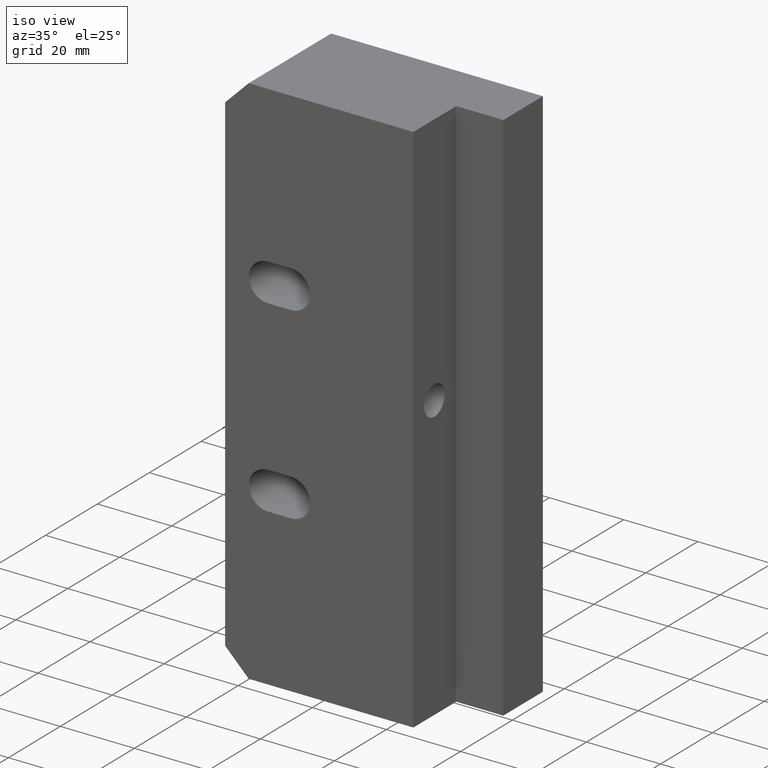
[diagram: clean part render]
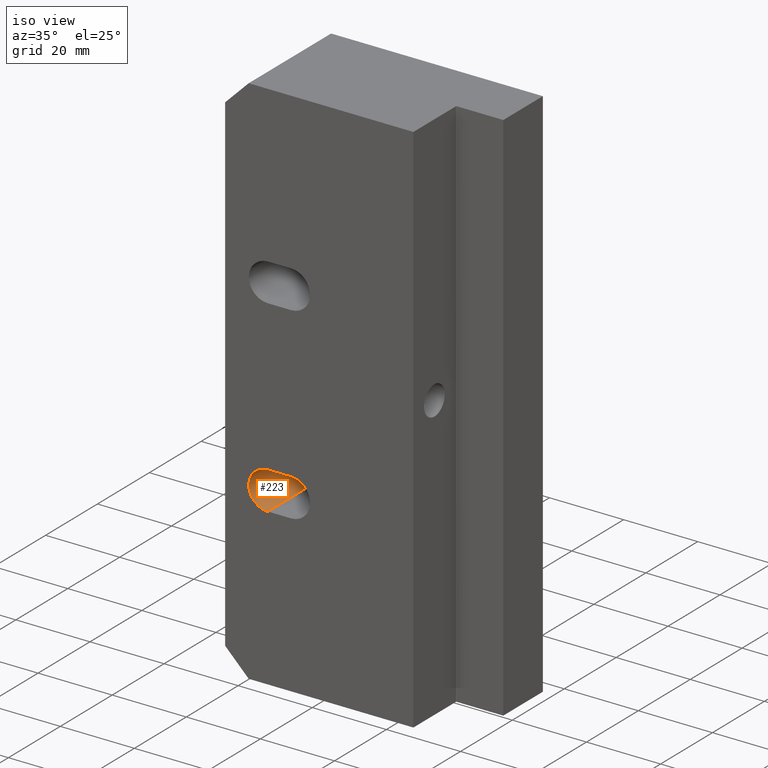
[diagram: same view with one face highlighted and labeled with its STEP entity id]
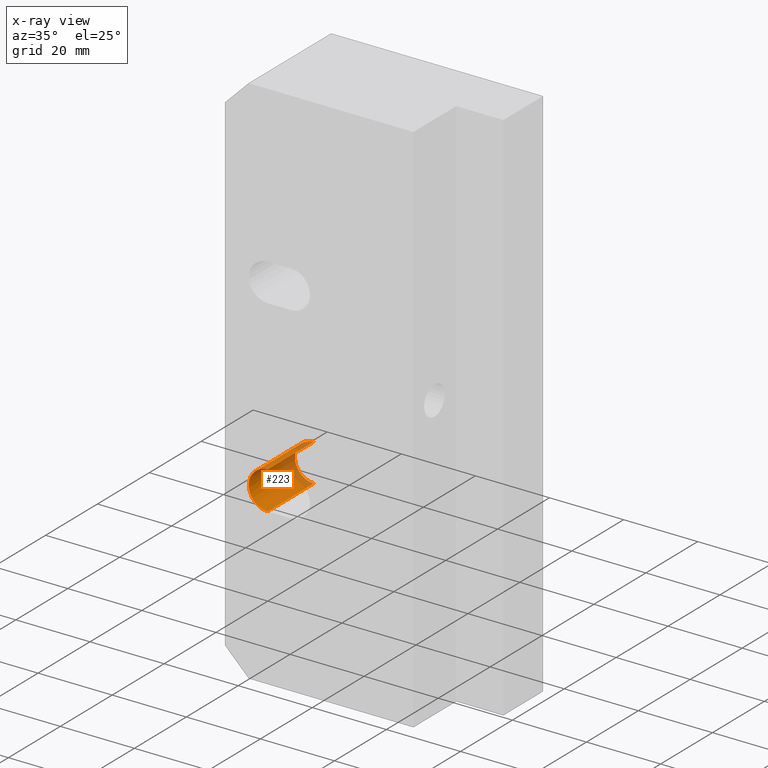
[diagram: x-ray of the same camera — body ghosted, the highlighted face saturated]
A machine part, iso view. The second image highlights one B-rep face of the part: STEP entity #223.
The next image is the same camera in x-ray: the body ghosted, the highlighted face saturated — about 22% of this face is hidden behind the body in this view.
In plain terms, the highlighted cylindrical surface (edge-blend (fillet) strip) has radius 5.08 mm, axis along (-0, -1, -0).
Its self-contained STEP definition (entity closure, byte-faithful):
#13 = VERTEX_POINT ( 'NONE', #2380 ) ;
#36 = ORIENTED_EDGE ( 'NONE', *, *, #3231, .F. ) ;
#58 = VECTOR ( 'NONE', #1295, 39.37007874015748100 ) ;
#134 = CARTESIAN_POINT ( 'NONE',  ( -2.048734939028663800, 0.7000000000000000700, -3.658999999999444300 ) ) ;
#223 = ADVANCED_FACE ( 'NONE', ( #1953 ), #865, .F. ) ;
#225 = DIRECTION ( 'NONE',  ( 0.0000000000000000000, 0.0000000000000000000, -1.000000000000000000 ) ) ;
#481 = EDGE_CURVE ( 'NONE', #721, #1224, #1127, .T. ) ;
#560 = ORIENTED_EDGE ( 'NONE', *, *, #481, .T. ) ;
#721 = VERTEX_POINT ( 'NONE', #4069 ) ;
#834 = CIRCLE ( 'NONE', #3294, 0.2000000000000000400 ) ;
#864 = VERTEX_POINT ( 'NONE', #2297 ) ;
#865 = CYLINDRICAL_SURFACE ( 'NONE', #3994, 0.2000000000000000400 ) ;
#919 = ORIENTED_EDGE ( 'NONE', *, *, #1213, .T. ) ;
#962 = CARTESIAN_POINT ( 'NONE',  ( -2.048734939028663800, 0.7000000000000000700, -4.058999999999444200 ) ) ;
#1127 = LINE ( 'NONE', #134, #3666 ) ;
#1200 = CARTESIAN_POINT ( 'NONE',  ( -2.048734939028663800, -0.0000000000000000000, -3.658999999999444300 ) ) ;
#1213 = EDGE_CURVE ( 'NONE', #1224, #13, #2790, .T. ) ;
#1224 = VERTEX_POINT ( 'NONE', #1200 ) ;
#1295 = DIRECTION ( 'NONE',  ( -0.0000000000000000000, -1.000000000000000000, -0.0000000000000000000 ) ) ;
#1299 = AXIS2_PLACEMENT_3D ( 'NONE', #4189, #2189, #225 ) ;
#1308 = CARTESIAN_POINT ( 'NONE',  ( -2.048734939028663800, 0.7000000000000000700, -3.858999999999444400 ) ) ;
#1634 = DIRECTION ( 'NONE',  ( 0.0000000000000000000, 0.0000000000000000000, -1.000000000000000000 ) ) ;
#1773 = DIRECTION ( 'NONE',  ( -0.0000000000000000000, -1.000000000000000000, -0.0000000000000000000 ) ) ;
#1920 = CARTESIAN_POINT ( 'NONE',  ( -2.048734939028663800, 0.7000000000000000700, -3.858999999999444400 ) ) ;
#1953 = FACE_OUTER_BOUND ( 'NONE', #3270, .T. ) ;
#2065 = ORIENTED_EDGE ( 'NONE', *, *, #3254, .F. ) ;
#2189 = DIRECTION ( 'NONE',  ( 0.0000000000000000000, -1.000000000000000000, 0.0000000000000000000 ) ) ;
#2297 = CARTESIAN_POINT ( 'NONE',  ( -2.048734939028663800, 0.7000000000000000700, -4.058999999999444200 ) ) ;
#2380 = CARTESIAN_POINT ( 'NONE',  ( -2.048734939028663800, 0.0000000000000000000, -4.058999999999444200 ) ) ;
#2790 = CIRCLE ( 'NONE', #1299, 0.2000000000000000400 ) ;
#3231 = EDGE_CURVE ( 'NONE', #864, #13, #3583, .T. ) ;
#3254 = EDGE_CURVE ( 'NONE', #721, #864, #834, .T. ) ;
#3270 = EDGE_LOOP ( 'NONE', ( #919, #36, #2065, #560 ) ) ;
#3279 = DIRECTION ( 'NONE',  ( -0.0000000000000000000, -1.000000000000000000, -0.0000000000000000000 ) ) ;
#3294 = AXIS2_PLACEMENT_3D ( 'NONE', #1308, #3634, #1634 ) ;
#3583 = LINE ( 'NONE', #962, #58 ) ;
#3634 = DIRECTION ( 'NONE',  ( 0.0000000000000000000, -1.000000000000000000, 0.0000000000000000000 ) ) ;
#3666 = VECTOR ( 'NONE', #1773, 39.37007874015748100 ) ;
#3908 = DIRECTION ( 'NONE',  ( 0.0000000000000000000, 0.0000000000000000000, -1.000000000000000000 ) ) ;
#3994 = AXIS2_PLACEMENT_3D ( 'NONE', #1920, #3279, #3908 ) ;
#4069 = CARTESIAN_POINT ( 'NONE',  ( -2.048734939028663800, 0.7000000000000000700, -3.658999999999444300 ) ) ;
#4189 = CARTESIAN_POINT ( 'NONE',  ( -2.048734939028663800, -0.0000000000000000000, -3.858999999999444400 ) ) ;